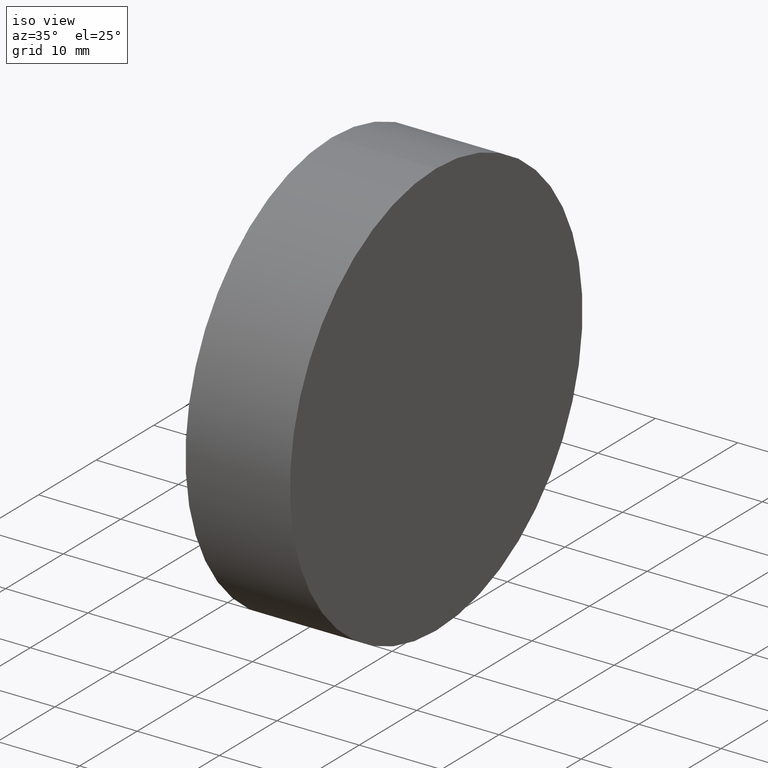
[diagram: clean part render]
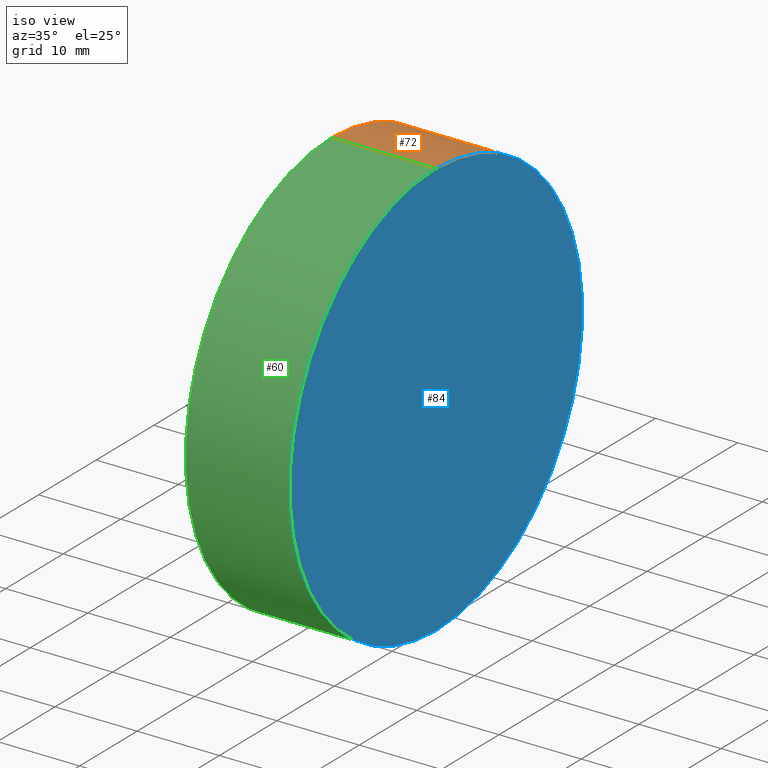
[diagram: same view with three faces highlighted in distinct colors, each labeled with its STEP entity id]
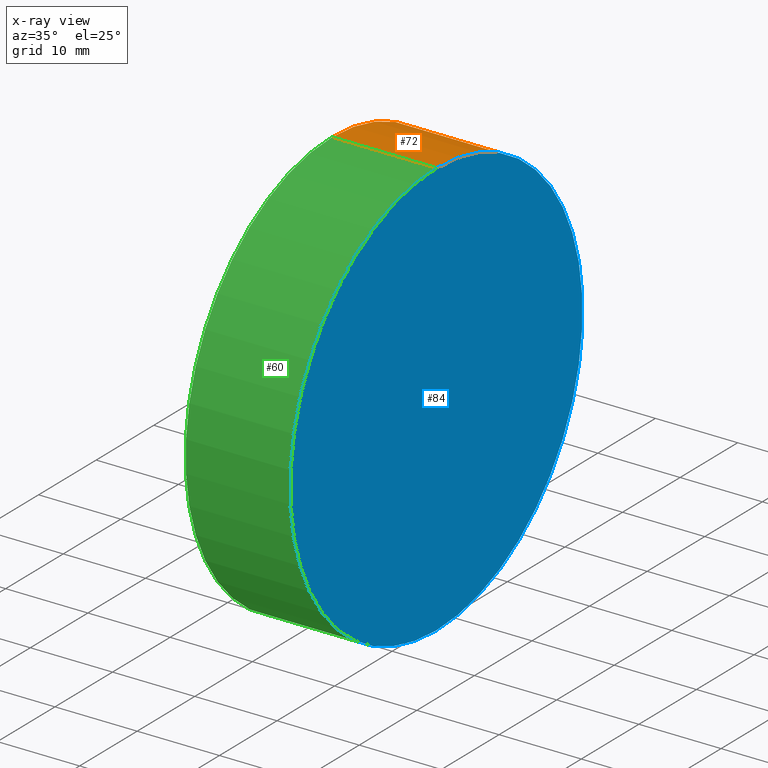
[diagram: x-ray of the same camera — body ghosted, the three highlighted faces saturated]
A machine part, iso view with three faces highlighted in distinct colors.
The next image is the same camera in x-ray (body ghosted, the three faces saturated) — at least one of them is partly hidden behind the body in this view.
Their STEP definitions:

[orange] entity #72 — the highlighted cylindrical surface (partial cylindrical patch) has radius 25.4 mm, axis along (-1, -0, -0).
#2 = VECTOR ( 'NONE', #22, 1000.000000000000000 ) ;
#5 = VECTOR ( 'NONE', #50, 1000.000000000000000 ) ;
#6 = EDGE_CURVE ( 'NONE', #100, #66, #48, .T. ) ;
#10 = VERTEX_POINT ( 'NONE', #18 ) ;
#17 = ORIENTED_EDGE ( 'NONE', *, *, #107, .F. ) ;
#18 = CARTESIAN_POINT ( 'NONE',  ( 532.1487057861286300, 154.5863586980308400, -25.40000000000000600 ) ) ;
#19 = CARTESIAN_POINT ( 'NONE',  ( 532.1487057861286300, 154.5863586980308400, 25.40000000000000600 ) ) ;
#22 = DIRECTION ( 'NONE',  ( -1.000000000000000000, -0.0000000000000000000, -0.0000000000000000000 ) ) ;
#24 = AXIS2_PLACEMENT_3D ( 'NONE', #89, #68, #133 ) ;
#35 = CIRCLE ( 'NONE', #70, 25.40000000000000600 ) ;
#36 = AXIS2_PLACEMENT_3D ( 'NONE', #82, #91, #127 ) ;
#42 = CYLINDRICAL_SURFACE ( 'NONE', #24, 25.40000000000000600 ) ;
#45 = ORIENTED_EDGE ( 'NONE', *, *, #123, .T. ) ;
#48 = LINE ( 'NONE', #58, #5 ) ;
#50 = DIRECTION ( 'NONE',  ( -1.000000000000000000, -0.0000000000000000000, -0.0000000000000000000 ) ) ;
#57 = CARTESIAN_POINT ( 'NONE',  ( 519.4487057861285800, 154.5863586980308400, -25.40000000000000600 ) ) ;
#58 = CARTESIAN_POINT ( 'NONE',  ( 508.0016039852320700, 154.5863586980308400, 25.40000000000000600 ) ) ;
#66 = VERTEX_POINT ( 'NONE', #92 ) ;
#68 = DIRECTION ( 'NONE',  ( -1.000000000000000000, -0.0000000000000000000, -0.0000000000000000000 ) ) ;
#70 = AXIS2_PLACEMENT_3D ( 'NONE', #126, #137, #71 ) ;
#71 = DIRECTION ( 'NONE',  ( 0.0000000000000000000, 0.0000000000000000000, 1.000000000000000000 ) ) ;
#72 = ADVANCED_FACE ( 'NONE', ( #94 ), #42, .T. ) ;
#81 = ORIENTED_EDGE ( 'NONE', *, *, #6, .F. ) ;
#82 = CARTESIAN_POINT ( 'NONE',  ( 519.4487057861285800, 154.5863586980308400, 0.0000000000000000000 ) ) ;
#89 = CARTESIAN_POINT ( 'NONE',  ( 508.0016039852320700, 154.5863586980308400, 0.0000000000000000000 ) ) ;
#91 = DIRECTION ( 'NONE',  ( -1.000000000000000000, -0.0000000000000000000, -0.0000000000000000000 ) ) ;
#92 = CARTESIAN_POINT ( 'NONE',  ( 519.4487057861285800, 154.5863586980308400, 25.40000000000000600 ) ) ;
#94 = FACE_OUTER_BOUND ( 'NONE', #108, .T. ) ;
#98 = VERTEX_POINT ( 'NONE', #57 ) ;
#100 = VERTEX_POINT ( 'NONE', #19 ) ;
#101 = CARTESIAN_POINT ( 'NONE',  ( 508.0016039852320700, 154.5863586980308400, -25.40000000000000600 ) ) ;
#106 = CIRCLE ( 'NONE', #36, 25.40000000000000600 ) ;
#107 = EDGE_CURVE ( 'NONE', #66, #98, #106, .T. ) ;
#108 = EDGE_LOOP ( 'NONE', ( #119, #45, #17, #81 ) ) ;
#109 = LINE ( 'NONE', #101, #2 ) ;
#117 = EDGE_CURVE ( 'NONE', #100, #10, #35, .T. ) ;
#119 = ORIENTED_EDGE ( 'NONE', *, *, #117, .T. ) ;
#123 = EDGE_CURVE ( 'NONE', #10, #98, #109, .T. ) ;
#126 = CARTESIAN_POINT ( 'NONE',  ( 532.1487057861286300, 154.5863586980308400, 0.0000000000000000000 ) ) ;
#127 = DIRECTION ( 'NONE',  ( 0.0000000000000000000, 0.0000000000000000000, 1.000000000000000000 ) ) ;
#133 = DIRECTION ( 'NONE',  ( 0.0000000000000000000, 0.0000000000000000000, 1.000000000000000000 ) ) ;
#137 = DIRECTION ( 'NONE',  ( -1.000000000000000000, -0.0000000000000000000, -0.0000000000000000000 ) ) ;

[blue] entity #84 — the highlighted planar face has unit normal (-1, 0, -0).
#7 = PLANE ( 'NONE',  #56 ) ;
#10 = VERTEX_POINT ( 'NONE', #18 ) ;
#18 = CARTESIAN_POINT ( 'NONE',  ( 532.1487057861286300, 154.5863586980308400, -25.40000000000000600 ) ) ;
#19 = CARTESIAN_POINT ( 'NONE',  ( 532.1487057861286300, 154.5863586980308400, 25.40000000000000600 ) ) ;
#32 = CARTESIAN_POINT ( 'NONE',  ( 532.1487057861286300, 154.5863586980308400, 0.0000000000000000000 ) ) ;
#35 = CIRCLE ( 'NONE', #70, 25.40000000000000600 ) ;
#41 = DIRECTION ( 'NONE',  ( 0.0000000000000000000, 0.0000000000000000000, 1.000000000000000000 ) ) ;
#49 = ORIENTED_EDGE ( 'NONE', *, *, #117, .F. ) ;
#56 = AXIS2_PLACEMENT_3D ( 'NONE', #80, #90, #83 ) ;
#59 = DIRECTION ( 'NONE',  ( -1.000000000000000000, -0.0000000000000000000, -0.0000000000000000000 ) ) ;
#64 = ORIENTED_EDGE ( 'NONE', *, *, #132, .F. ) ;
#70 = AXIS2_PLACEMENT_3D ( 'NONE', #126, #137, #71 ) ;
#71 = DIRECTION ( 'NONE',  ( 0.0000000000000000000, 0.0000000000000000000, 1.000000000000000000 ) ) ;
#74 = FACE_OUTER_BOUND ( 'NONE', #130, .T. ) ;
#80 = CARTESIAN_POINT ( 'NONE',  ( 532.1487057861286300, 154.5863586980308400, 0.0000000000000000000 ) ) ;
#83 = DIRECTION ( 'NONE',  ( -0.0000000000000000000, 0.0000000000000000000, 1.000000000000000000 ) ) ;
#84 = ADVANCED_FACE ( 'NONE', ( #74 ), #7, .F. ) ;
#90 = DIRECTION ( 'NONE',  ( -1.000000000000000000, 0.0000000000000000000, -0.0000000000000000000 ) ) ;
#100 = VERTEX_POINT ( 'NONE', #19 ) ;
#117 = EDGE_CURVE ( 'NONE', #100, #10, #35, .T. ) ;
#126 = CARTESIAN_POINT ( 'NONE',  ( 532.1487057861286300, 154.5863586980308400, 0.0000000000000000000 ) ) ;
#129 = CIRCLE ( 'NONE', #138, 25.40000000000000600 ) ;
#130 = EDGE_LOOP ( 'NONE', ( #49, #64 ) ) ;
#132 = EDGE_CURVE ( 'NONE', #10, #100, #129, .T. ) ;
#137 = DIRECTION ( 'NONE',  ( -1.000000000000000000, -0.0000000000000000000, -0.0000000000000000000 ) ) ;
#138 = AXIS2_PLACEMENT_3D ( 'NONE', #32, #59, #41 ) ;

[green] entity #60 — the highlighted cylindrical surface (partial cylindrical patch) has radius 25.4 mm, axis along (-1, -0, -0).
#1 = ORIENTED_EDGE ( 'NONE', *, *, #132, .T. ) ;
#2 = VECTOR ( 'NONE', #22, 1000.000000000000000 ) ;
#5 = VECTOR ( 'NONE', #50, 1000.000000000000000 ) ;
#6 = EDGE_CURVE ( 'NONE', #100, #66, #48, .T. ) ;
#10 = VERTEX_POINT ( 'NONE', #18 ) ;
#13 = CIRCLE ( 'NONE', #86, 25.40000000000000600 ) ;
#14 = EDGE_LOOP ( 'NONE', ( #34, #1, #63, #20 ) ) ;
#18 = CARTESIAN_POINT ( 'NONE',  ( 532.1487057861286300, 154.5863586980308400, -25.40000000000000600 ) ) ;
#19 = CARTESIAN_POINT ( 'NONE',  ( 532.1487057861286300, 154.5863586980308400, 25.40000000000000600 ) ) ;
#20 = ORIENTED_EDGE ( 'NONE', *, *, #52, .F. ) ;
#22 = DIRECTION ( 'NONE',  ( -1.000000000000000000, -0.0000000000000000000, -0.0000000000000000000 ) ) ;
#29 = DIRECTION ( 'NONE',  ( 0.0000000000000000000, 0.0000000000000000000, 1.000000000000000000 ) ) ;
#30 = CYLINDRICAL_SURFACE ( 'NONE', #47, 25.40000000000000600 ) ;
#32 = CARTESIAN_POINT ( 'NONE',  ( 532.1487057861286300, 154.5863586980308400, 0.0000000000000000000 ) ) ;
#34 = ORIENTED_EDGE ( 'NONE', *, *, #123, .F. ) ;
#37 = CARTESIAN_POINT ( 'NONE',  ( 508.0016039852320700, 154.5863586980308400, 0.0000000000000000000 ) ) ;
#41 = DIRECTION ( 'NONE',  ( 0.0000000000000000000, 0.0000000000000000000, 1.000000000000000000 ) ) ;
#47 = AXIS2_PLACEMENT_3D ( 'NONE', #37, #69, #110 ) ;
#48 = LINE ( 'NONE', #58, #5 ) ;
#50 = DIRECTION ( 'NONE',  ( -1.000000000000000000, -0.0000000000000000000, -0.0000000000000000000 ) ) ;
#51 = CARTESIAN_POINT ( 'NONE',  ( 519.4487057861285800, 154.5863586980308400, 0.0000000000000000000 ) ) ;
#52 = EDGE_CURVE ( 'NONE', #98, #66, #13, .T. ) ;
#57 = CARTESIAN_POINT ( 'NONE',  ( 519.4487057861285800, 154.5863586980308400, -25.40000000000000600 ) ) ;
#58 = CARTESIAN_POINT ( 'NONE',  ( 508.0016039852320700, 154.5863586980308400, 25.40000000000000600 ) ) ;
#59 = DIRECTION ( 'NONE',  ( -1.000000000000000000, -0.0000000000000000000, -0.0000000000000000000 ) ) ;
#60 = ADVANCED_FACE ( 'NONE', ( #120 ), #30, .T. ) ;
#63 = ORIENTED_EDGE ( 'NONE', *, *, #6, .T. ) ;
#66 = VERTEX_POINT ( 'NONE', #92 ) ;
#69 = DIRECTION ( 'NONE',  ( -1.000000000000000000, -0.0000000000000000000, -0.0000000000000000000 ) ) ;
#86 = AXIS2_PLACEMENT_3D ( 'NONE', #51, #112, #29 ) ;
#92 = CARTESIAN_POINT ( 'NONE',  ( 519.4487057861285800, 154.5863586980308400, 25.40000000000000600 ) ) ;
#98 = VERTEX_POINT ( 'NONE', #57 ) ;
#100 = VERTEX_POINT ( 'NONE', #19 ) ;
#101 = CARTESIAN_POINT ( 'NONE',  ( 508.0016039852320700, 154.5863586980308400, -25.40000000000000600 ) ) ;
#109 = LINE ( 'NONE', #101, #2 ) ;
#110 = DIRECTION ( 'NONE',  ( 0.0000000000000000000, 0.0000000000000000000, 1.000000000000000000 ) ) ;
#112 = DIRECTION ( 'NONE',  ( -1.000000000000000000, -0.0000000000000000000, -0.0000000000000000000 ) ) ;
#120 = FACE_OUTER_BOUND ( 'NONE', #14, .T. ) ;
#123 = EDGE_CURVE ( 'NONE', #10, #98, #109, .T. ) ;
#129 = CIRCLE ( 'NONE', #138, 25.40000000000000600 ) ;
#132 = EDGE_CURVE ( 'NONE', #10, #100, #129, .T. ) ;
#138 = AXIS2_PLACEMENT_3D ( 'NONE', #32, #59, #41 ) ;